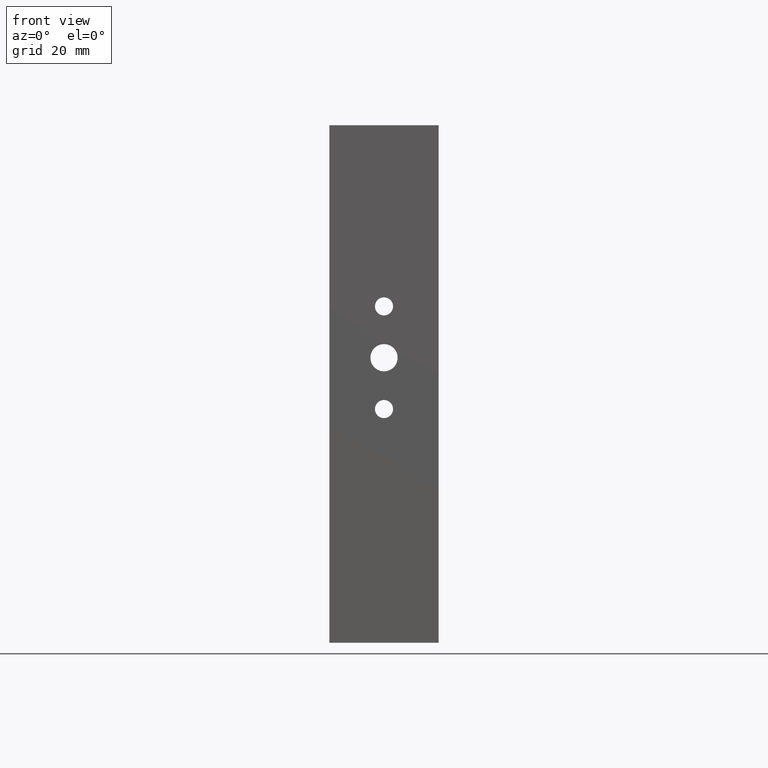
[diagram: clean part render]
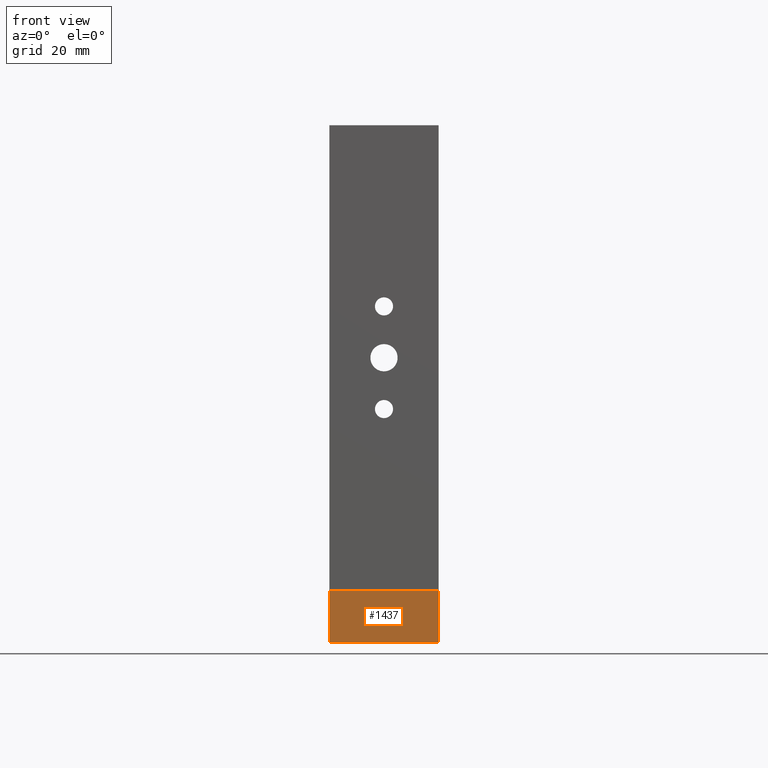
[diagram: same view with one face highlighted and labeled with its STEP entity id]
A machine part, front view. The second image highlights one B-rep face of the part: STEP entity #1437.
In plain terms, the highlighted planar face has unit normal (-0, 1, -0).
Its self-contained STEP definition (entity closure, byte-faithful):
#294 = DIRECTION ( 'NONE',  ( 0.0000000000000000000, -1.224606353822377300E-016, -1.000000000000000000 ) ) ;
#322 = VERTEX_POINT ( 'NONE', #3658 ) ;
#601 = CARTESIAN_POINT ( 'NONE',  ( -18.56811989100815600, -1.880108991825613100, -57.50000000000015600 ) ) ;
#932 = CARTESIAN_POINT ( 'NONE',  ( -18.56811989100815600, -1.880108991825613100, -57.50000000000015600 ) ) ;
#1060 = CARTESIAN_POINT ( 'NONE',  ( 8.431880108991840900, -1.880108991825606200, -57.50000000000015600 ) ) ;
#1179 = DIRECTION ( 'NONE',  ( 1.000000000000000000, 2.569960705150825400E-016, -3.147190208601537900E-032 ) ) ;
#1437 = ADVANCED_FACE ( 'NONE', ( #5227 ), #7066, .F. ) ;
#1671 = DIRECTION ( 'NONE',  ( 1.000000000000000000, 2.569960705150825400E-016, -3.147190208601537900E-032 ) ) ;
#1738 = LINE ( 'NONE', #932, #3188 ) ;
#1877 = EDGE_LOOP ( 'NONE', ( #4555, #3876, #5807, #3201 ) ) ;
#2575 = EDGE_CURVE ( 'NONE', #4319, #8015, #3996, .T. ) ;
#2770 = VECTOR ( 'NONE', #1671, 1000.000000000000000 ) ;
#3188 = VECTOR ( 'NONE', #294, 1000.000000000000000 ) ;
#3201 = ORIENTED_EDGE ( 'NONE', *, *, #8226, .T. ) ;
#3470 = EDGE_CURVE ( 'NONE', #322, #8015, #6244, .T. ) ;
#3658 = CARTESIAN_POINT ( 'NONE',  ( -18.56811989100815600, -1.880108991825613100, -70.50000000000000000 ) ) ;
#3779 = DIRECTION ( 'NONE',  ( -1.000000000000000000, -2.569960705150825400E-016, 3.147190208601537900E-032 ) ) ;
#3825 = AXIS2_PLACEMENT_3D ( 'NONE', #601, #4419, #3779 ) ;
#3876 = ORIENTED_EDGE ( 'NONE', *, *, #2575, .F. ) ;
#3996 = LINE ( 'NONE', #1060, #4200 ) ;
#4200 = VECTOR ( 'NONE', #8127, 1000.000000000000000 ) ;
#4319 = VERTEX_POINT ( 'NONE', #5239 ) ;
#4419 = DIRECTION ( 'NONE',  ( -2.569960705150825400E-016, 1.000000000000000000, -1.224606353822377300E-016 ) ) ;
#4555 = ORIENTED_EDGE ( 'NONE', *, *, #3470, .T. ) ;
#4722 = LINE ( 'NONE', #6286, #7573 ) ;
#5227 = FACE_OUTER_BOUND ( 'NONE', #1877, .T. ) ;
#5239 = CARTESIAN_POINT ( 'NONE',  ( 8.431880108991840900, -1.880108991825606200, -57.50000000000015600 ) ) ;
#5807 = ORIENTED_EDGE ( 'NONE', *, *, #7961, .F. ) ;
#6244 = LINE ( 'NONE', #7992, #2770 ) ;
#6286 = CARTESIAN_POINT ( 'NONE',  ( -18.56811989100815600, -1.880108991825613100, -57.50000000000015600 ) ) ;
#6393 = CARTESIAN_POINT ( 'NONE',  ( 8.431880108991840900, -1.880108991825606200, -70.50000000000000000 ) ) ;
#7020 = CARTESIAN_POINT ( 'NONE',  ( -18.56811989100815600, -1.880108991825613100, -57.50000000000015600 ) ) ;
#7021 = VERTEX_POINT ( 'NONE', #7020 ) ;
#7066 = PLANE ( 'NONE',  #3825 ) ;
#7573 = VECTOR ( 'NONE', #1179, 1000.000000000000000 ) ;
#7961 = EDGE_CURVE ( 'NONE', #7021, #4319, #4722, .T. ) ;
#7992 = CARTESIAN_POINT ( 'NONE',  ( -18.56811989100815600, -1.880108991825613100, -70.50000000000000000 ) ) ;
#8015 = VERTEX_POINT ( 'NONE', #6393 ) ;
#8127 = DIRECTION ( 'NONE',  ( 0.0000000000000000000, -1.224606353822377300E-016, -1.000000000000000000 ) ) ;
#8226 = EDGE_CURVE ( 'NONE', #7021, #322, #1738, .T. ) ;